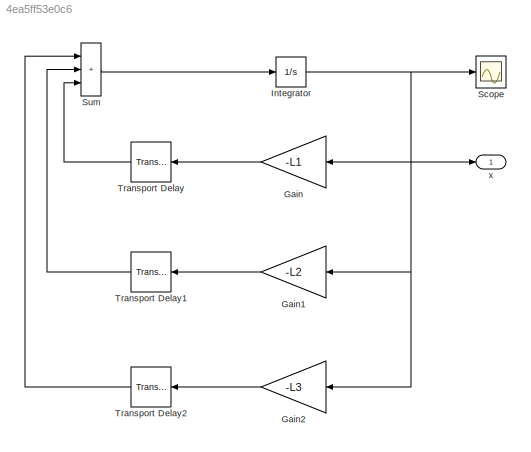
MODEL slx_4ea5ff53e0c6
KIND model
CONFIG AbsTol = auto
CONFIG EnableMultiTasking = off
CONFIG FixedStep = auto
CONFIG MaxStep = 0.01
CONFIG MinStep = 0.001
CONFIG RelTol = 1e-3
CONFIG SampleTimeConstraint = Unconstrained
CONFIG SolverName = VariableStepAuto
CONFIG StartTime = 0.0
CONFIG StopTime = t_end
BLOCK [Gain] Gain
  Gain = -L1
  Multiplication = Matrix(K*u) (u vector)
BLOCK [Gain] Gain1
  Gain = -L2
  Multiplication = Matrix(K*u) (u vector)
BLOCK [Gain] Gain2
  Gain = -L3
  Multiplication = Matrix(K*u) (u vector)
BLOCK [Integrator] Integrator
  InitialCondition = x0
  Ports = [1, 1]
BLOCK [Scope] Scope
  Floating = off
  NumInputPorts = 1
  Ports = [1]
  ScopeSpecificationString = Simulink.scopes.TimeScopeBlockCfg('CurrentConfiguration', extmgr.ConfigurationSet(extmgr.Configuration('Core','General UI',true,'FigureColor',[1 1 1]),extmgr.Configuration('Core','Source UI',true),extmgr.Configuration('Sources','WiredSimulink',true,'DataLogging',true,'DataLoggingSaveFormat','StructureWithTime'),extmgr.Configuration('Visuals','Time Domain',true,'SerializedDisplays',{struct('MinYLim...<+2108ch>
BLOCK [Sum] Sum
  IconShape = rectangular
  Inputs = |+++
  Ports = [3, 1]
BLOCK [TransportDelay] Transport Delay
  DelayTime = tau1
  Ports = [1, 1]
BLOCK [TransportDelay] Transport Delay1
  DelayTime = tau2
  Ports = [1, 1]
BLOCK [TransportDelay] Transport Delay2
  DelayTime = tau3
  Ports = [1, 1]
BLOCK [Outport] x
  SignalName = x
LINE Gain1:1 -> Transport Delay1:1
LINE Gain2:1 -> Transport Delay2:1
LINE Gain:1 -> Transport Delay:1
NET Integrator:1 -> Gain1:1, Gain2:1, Gain:1, Scope:1, x:1
LINE Sum:1 -> Integrator:1
LINE Transport Delay1:1 -> Sum:2
LINE Transport Delay2:1 -> Sum:1
LINE Transport Delay:1 -> Sum:3
note: NET lines group one-source signal fan-out (src -> all destinations, sorted); 1:1 wires keep LINE
